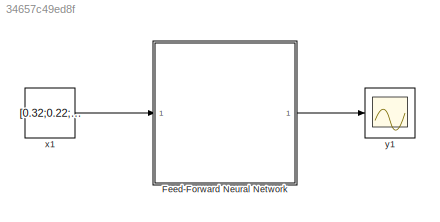
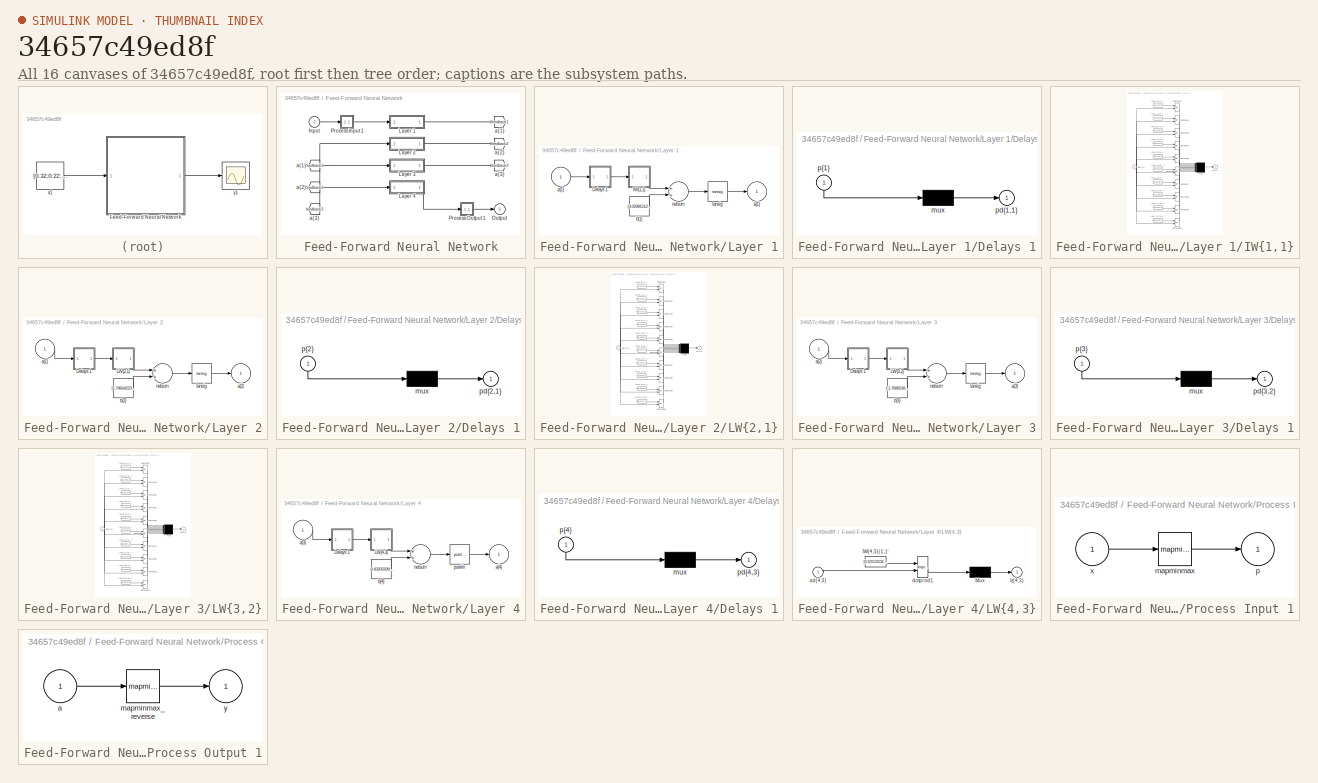
[diagram: thumbnail index - all 16 canvases of the model, root first then tree order]
MODEL slx_34657c49ed8f
KIND model
CONFIG AbsTol = auto
CONFIG EnableMultiTasking = off
CONFIG FixedStep = auto
CONFIG MaxStep = auto
CONFIG MinStep = auto
CONFIG RelTol = 1e-3
CONFIG SampleTimeConstraint = Unconstrained
CONFIG Solver = VariableStepAuto
CONFIG SolverName = VariableStepAuto
CONFIG StartTime = 0.0
CONFIG StopTime = 10.0
BLOCK [SubSystem] Feed-Forward Neural Network
  Ports = [1, 1]
  RequestExecContextInheritance = off
BLOCK [From] Feed-Forward Neural Network/ a{1} 
  GotoTag = feedback1
BLOCK [From] Feed-Forward Neural Network/ a{2} 
  GotoTag = feedback2
BLOCK [From] Feed-Forward Neural Network/ a{3} 
  GotoTag = feedback3
BLOCK [Inport] Feed-Forward Neural Network/Input
  IconDisplay = Port number
  PortDimensions = 3
BLOCK [SubSystem] Feed-Forward Neural Network/Layer 1
  Ports = [1, 1]
  RequestExecContextInheritance = off
BLOCK [SubSystem] Feed-Forward Neural Network/Layer 1/Delays 1
  Ports = [1, 1]
  RequestExecContextInheritance = off
BLOCK [Mux] Feed-Forward Neural Network/Layer 1/Delays 1/mux
  Inputs = 1
  Ports = [1, 1]
BLOCK [Outport] Feed-Forward Neural Network/Layer 1/Delays 1/pd{1,1}
  IconDisplay = Port number
BLOCK [Inport] Feed-Forward Neural Network/Layer 1/Delays 1/p{1}
  IconDisplay = Port number
  PortDimensions = 3
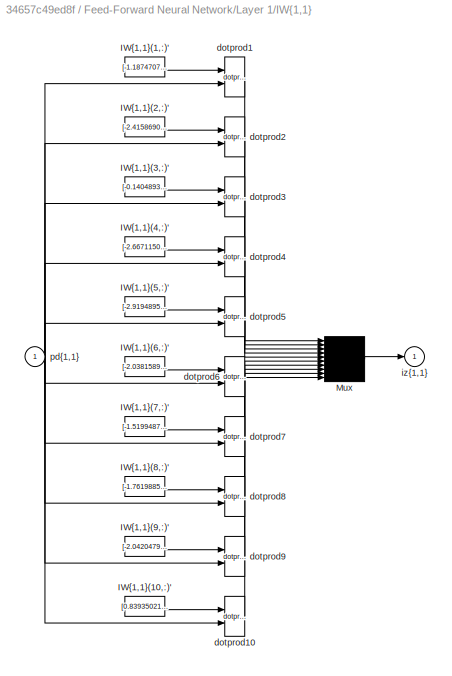
BLOCK [SubSystem] Feed-Forward Neural Network/Layer 1/IW{1,1}
  Ports = [1, 1]
  RequestExecContextInheritance = off
BLOCK [Constant] Feed-Forward Neural Network/Layer 1/IW{1,1}/IW{1,1}(1,:)'
  Value = [-1.1874707361875878053325550354202277958393096923828125;-1.89089737133453272832639413536526262760162353515625;-1.9895543531617090327046071251970715820789337158203125]
BLOCK [Constant] Feed-Forward Neural Network/Layer 1/IW{1,1}/IW{1,1}(10,:)'
  Value = [0.8393502176580829310381659524864517152309417724609375;2.18522999062611500420416632550768554210662841796875;-2.11103879129686067273041771841235458850860595703125]
BLOCK [Constant] Feed-Forward Neural Network/Layer 1/IW{1,1}/IW{1,1}(2,:)'
  Value = [-2.41586901124086761427633973653428256511688232421875;0.32617140747729411742739102919586002826690673828125;-1.56065848059455536400719211087562143802642822265625]
BLOCK [Constant] Feed-Forward Neural Network/Layer 1/IW{1,1}/IW{1,1}(3,:)'
  Value = [-0.1404893306141508924067551333791925571858882904052734375;2.87033758014271001002271077595651149749755859375;0.97435482240259663200276918360032141208648681640625]
BLOCK [Constant] Feed-Forward Neural Network/Layer 1/IW{1,1}/IW{1,1}(4,:)'
  Value = [-2.667115049922116565284113676170818507671356201171875;0.06901094992772864589181125438699382357299327850341796875;1.267962301509986122738382618990726768970489501953125]
BLOCK [Constant] Feed-Forward Neural Network/Layer 1/IW{1,1}/IW{1,1}(5,:)'
  Value = [-2.919489567655082939978683498338796198368072509765625;0.292197009989439815402789690779172815382480621337890625;-0.66620780622585318297979029011912643909454345703125]
BLOCK [Constant] Feed-Forward Neural Network/Layer 1/IW{1,1}/IW{1,1}(6,:)'
  Value = [-2.0381589758651319499449527938850224018096923828125;-0.3158141342633822290508760488592088222503662109375;-2.104778139815324689010367364971898496150970458984375]
BLOCK [Constant] Feed-Forward Neural Network/Layer 1/IW{1,1}/IW{1,1}(7,:)'
  Value = [-1.519948760394426390263333814800716936588287353515625;-1.61961933016207115798579252441413700580596923828125;2.0305199010230836620394256897270679473876953125]
BLOCK [Constant] Feed-Forward Neural Network/Layer 1/IW{1,1}/IW{1,1}(8,:)'
  Value = [-1.76198851851165816384536810801364481449127197265625;-0.017744385126355823045773973944960744120180606842041015625;-2.403045472565333628978123670094646513462066650390625]
BLOCK [Constant] Feed-Forward Neural Network/Layer 1/IW{1,1}/IW{1,1}(9,:)'
  Value = [-2.042047938417113517317602600087411701679229736328125;1.4523385411372575770627690872061066329479217529296875;-1.7659180802314049518741967403911985456943511962890625]
BLOCK [Mux] Feed-Forward Neural Network/Layer 1/IW{1,1}/Mux
  Inputs = 10
  Ports = [10, 1]
BLOCK [Reference] Feed-Forward Neural Network/Layer 1/IW{1,1}/dotprod1  REF=neural/Weight Functions/dotprod
  Ports = [2, 1]
  SourceBlock = neural/Weight Functions/dotprod
  SourceProductBaseCode = NN
  SourceProductName = Neural Network Toolbox
  SourceType = DOTPROD
BLOCK [Reference] Feed-Forward Neural Network/Layer 1/IW{1,1}/dotprod10  REF=neural/Weight Functions/dotprod
  Ports = [2, 1]
  SourceBlock = neural/Weight Functions/dotprod
  SourceProductBaseCode = NN
  SourceProductName = Neural Network Toolbox
  SourceType = DOTPROD
BLOCK [Reference] Feed-Forward Neural Network/Layer 1/IW{1,1}/dotprod2  REF=neural/Weight Functions/dotprod
  Ports = [2, 1]
  SourceBlock = neural/Weight Functions/dotprod
  SourceProductBaseCode = NN
  SourceProductName = Neural Network Toolbox
  SourceType = DOTPROD
BLOCK [Reference] Feed-Forward Neural Network/Layer 1/IW{1,1}/dotprod3  REF=neural/Weight Functions/dotprod
  Ports = [2, 1]
  SourceBlock = neural/Weight Functions/dotprod
  SourceProductBaseCode = NN
  SourceProductName = Neural Network Toolbox
  SourceType = DOTPROD
BLOCK [Reference] Feed-Forward Neural Network/Layer 1/IW{1,1}/dotprod4  REF=neural/Weight Functions/dotprod
  Ports = [2, 1]
  SourceBlock = neural/Weight Functions/dotprod
  SourceProductBaseCode = NN
  SourceProductName = Neural Network Toolbox
  SourceType = DOTPROD
BLOCK [Reference] Feed-Forward Neural Network/Layer 1/IW{1,1}/dotprod5  REF=neural/Weight Functions/dotprod
  Ports = [2, 1]
  SourceBlock = neural/Weight Functions/dotprod
  SourceProductBaseCode = NN
  SourceProductName = Neural Network Toolbox
  SourceType = DOTPROD
BLOCK [Reference] Feed-Forward Neural Network/Layer 1/IW{1,1}/dotprod6  REF=neural/Weight Functions/dotprod
  Ports = [2, 1]
  SourceBlock = neural/Weight Functions/dotprod
  SourceProductBaseCode = NN
  SourceProductName = Neural Network Toolbox
  SourceType = DOTPROD
BLOCK [Reference] Feed-Forward Neural Network/Layer 1/IW{1,1}/dotprod7  REF=neural/Weight Functions/dotprod
  Ports = [2, 1]
  SourceBlock = neural/Weight Functions/dotprod
  SourceProductBaseCode = NN
  SourceProductName = Neural Network Toolbox
  SourceType = DOTPROD
BLOCK [Reference] Feed-Forward Neural Network/Layer 1/IW{1,1}/dotprod8  REF=neural/Weight Functions/dotprod
  Ports = [2, 1]
  SourceBlock = neural/Weight Functions/dotprod
  SourceProductBaseCode = NN
  SourceProductName = Neural Network Toolbox
  SourceType = DOTPROD
BLOCK [Reference] Feed-Forward Neural Network/Layer 1/IW{1,1}/dotprod9  REF=neural/Weight Functions/dotprod
  Ports = [2, 1]
  SourceBlock = neural/Weight Functions/dotprod
  SourceProductBaseCode = NN
  SourceProductName = Neural Network Toolbox
  SourceType = DOTPROD
BLOCK [Outport] Feed-Forward Neural Network/Layer 1/IW{1,1}/iz{1,1}
  IconDisplay = Port number
BLOCK [Inport] Feed-Forward Neural Network/Layer 1/IW{1,1}/pd{1,1}
  IconDisplay = Port number
  PortDimensions = 3
BLOCK [Outport] Feed-Forward Neural Network/Layer 1/a{1}
  IconDisplay = Port number
  InitialOutput = [0;0;0;0;0;0;0;0;0;0]
BLOCK [Constant] Feed-Forward Neural Network/Layer 1/b{1}
  Value = [3.0298151241635320474188119987957179546356201171875;2.453261651684496502667798267793841660022735595703125;1.6601444919179872972136990938452072441577911376953125;1.0081934142086705907814803140354342758655548095703125;0.2815604593129836796805420817690901458263397216796875;-0.52749952453064452573272546942462213337421417236328125;-1.005023276547442723227732130908407270908355712890625;-1.7017856511019...<+145ch>
BLOCK [Sum] Feed-Forward Neural Network/Layer 1/netsum
  Inputs = 2
  Ports = [2, 1]
BLOCK [Inport] Feed-Forward Neural Network/Layer 1/p{1}
  IconDisplay = Port number
  PortDimensions = 3
BLOCK [Reference] Feed-Forward Neural Network/Layer 1/tansig  REF=neural/Transfer Functions/tansig
  Ports = [1, 1]
  SourceBlock = neural/Transfer Functions/tansig
  SourceProductBaseCode = NN
  SourceProductName = Neural Network Toolbox
  SourceType = TANSIG
BLOCK [SubSystem] Feed-Forward Neural Network/Layer 2
  Ports = [1, 1]
  RequestExecContextInheritance = off
BLOCK [SubSystem] Feed-Forward Neural Network/Layer 2/Delays 1
  Ports = [1, 1]
  RequestExecContextInheritance = off
BLOCK [Mux] Feed-Forward Neural Network/Layer 2/Delays 1/mux
  Inputs = 1
  Ports = [1, 1]
BLOCK [Outport] Feed-Forward Neural Network/Layer 2/Delays 1/pd{2,1}
  IconDisplay = Port number
BLOCK [Inport] Feed-Forward Neural Network/Layer 2/Delays 1/p{2}
  IconDisplay = Port number
  PortDimensions = 10
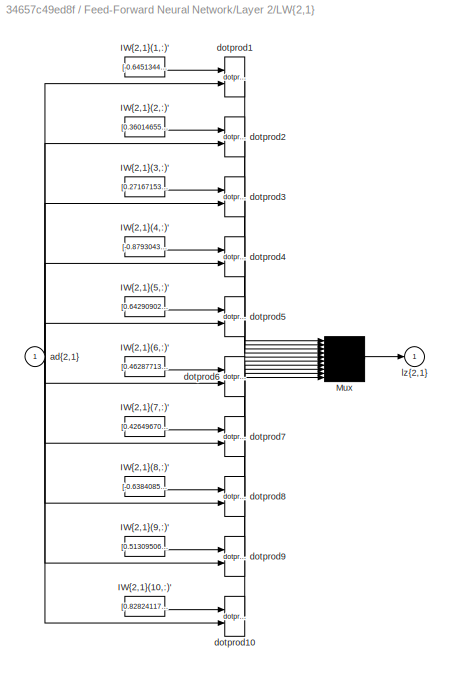
BLOCK [SubSystem] Feed-Forward Neural Network/Layer 2/LW{2,1}
  Ports = [1, 1]
  RequestExecContextInheritance = off
BLOCK [Constant] Feed-Forward Neural Network/Layer 2/LW{2,1}/IW{2,1}(1,:)'
  Value = [-0.64513440205722971665380782724241726100444793701171875;0.89997828434983928591606172631145454943180084228515625;-0.393619364648660929884016468349727801978588104248046875;-0.861583601851028557661038576043210923671722412109375;-0.411776327470188829860120449666283093392848968505859375;-0.3223917570621350758841572314850054681301116943359375;0.0787848293780692154886224898291402496397495269775390625;-...<+170ch>
BLOCK [Constant] Feed-Forward Neural Network/Layer 2/LW{2,1}/IW{2,1}(10,:)'
  Value = [0.82824117093505800202279942823224700987339019775390625;-0.37400259884171382918083281765575520694255828857421875;-0.07876310243182353676427709388008224777877330780029296875;0.96653711490576232900906461509293876588344573974609375;0.045051468934810635913468246371849090792238712310791015625;0.424829148816694590617970561652327887713909149169921875;-0.83340605553642066460895421187160536646842956542968...<+172ch>
BLOCK [Constant] Feed-Forward Neural Network/Layer 2/LW{2,1}/IW{2,1}(2,:)'
  Value = [0.360146559608427008214448505896143615245819091796875;0.82779858304053421935719825341948308050632476806640625;-0.3314160348846371118014531020889990031719207763671875;-0.5049435428360269373371238543768413364887237548828125;-0.02069753464205299764433476639169384725391864776611328125;-0.39004002032412454781251653912477195262908935546875;-0.6271078969969485772395501044229604303836822509765625;-0.8994...<+161ch>
BLOCK [Constant] Feed-Forward Neural Network/Layer 2/LW{2,1}/IW{2,1}(3,:)'
  Value = [0.2716715301440622010176184630836360156536102294921875;0.7791356486016340898714815921266563236713409423828125;0.1609892689978459079380712637430406175553798675537109375;0.5433171649977628359096115673310123383998870849609375;0.029876600714084315668639391105898539535701274871826171875;-0.68119107643328280499162019623327068984508514404296875;0.480790663142458274403878704106318764388561248779296875;0....<+168ch>
BLOCK [Constant] Feed-Forward Neural Network/Layer 2/LW{2,1}/IW{2,1}(4,:)'
  Value = [-0.87930436799550892867927132101613096892833709716796875;-0.039485441066613967409093532978658913634717464447021484375;0.255267158424291318308263498693122528493404388427734375;-0.365860416559253442958521418404416181147098541259765625;0.424685872187893498352906362924841232597827911376953125;0.7693853319325907325065827535581775009632110595703125;-0.456328015791298446934831645194208249449729919433593...<+170ch>
BLOCK [Constant] Feed-Forward Neural Network/Layer 2/LW{2,1}/IW{2,1}(5,:)'
  Value = [0.64290902575748598568594616153859533369541168212890625;-0.60549518920063538640619071884430013597011566162109375;-0.86595223140692823005082345844130031764507293701171875;0.65502276083030597231271485725301317870616912841796875;0.499051015271302966791466815266176126897335052490234375;0.284420035946963911666074409367865882813930511474609375;-0.49314137460779294830359731349744834005832672119140625;-0...<+172ch>
BLOCK [Constant] Feed-Forward Neural Network/Layer 2/LW{2,1}/IW{2,1}(6,:)'
  Value = [0.462877130618956911245476248950581066310405731201171875;-0.2245728245606085915486715975930565036833286285400390625;0.728148756827562859683666829369030892848968505859375;-0.7417138456466483287243818267597816884517669677734375;-0.8596005233476751161703077741549350321292877197265625;-0.1796434181578547006896684479215764440596103668212890625;-0.423062240659808963538779380542109720408916473388671875;...<+171ch>
BLOCK [Constant] Feed-Forward Neural Network/Layer 2/LW{2,1}/IW{2,1}(7,:)'
  Value = [0.426496704134075310665963343126350082457065582275390625;-0.67503169496579584762940839937073178589344024658203125;0.1473083628188757432386779555599787272512912750244140625;0.7518691757717779200476115875062532722949981689453125;-0.60028588022911522070756973334937356412410736083984375;0.71719203423739685820947897809674032032489776611328125;0.70170855524511488443550888405297882854938507080078125;-0....<+167ch>
BLOCK [Constant] Feed-Forward Neural Network/Layer 2/LW{2,1}/IW{2,1}(8,:)'
  Value = [-0.63840852013356386152054255944676697254180908203125;-0.67619468516183800499419476182083599269390106201171875;0.53273125863322190465254379887483082711696624755859375;-0.03526396136553520965772889894651598297059535980224609375;-0.2001672497940904238422632488436647690832614898681640625;-0.58642086272704252447596218189573846757411956787109375;-0.58429097634234683500409346379456110298633575439453125...<+165ch>
BLOCK [Constant] Feed-Forward Neural Network/Layer 2/LW{2,1}/IW{2,1}(9,:)'
  Value = [0.5130950617102822963744301887345500290393829345703125;0.6573605215376421284645402920432388782501220703125;-0.2324049189358489975187893605834688059985637664794921875;0.3116988106529714475101400239509530365467071533203125;-0.70109218060353750701096942066214978694915771484375;0.369500345007646224804176426914636977016925811767578125;-0.446079619210453248712155982502736151218414306640625;0.7646490085...<+157ch>
BLOCK [Mux] Feed-Forward Neural Network/Layer 2/LW{2,1}/Mux
  Inputs = 10
  Ports = [10, 1]
BLOCK [Inport] Feed-Forward Neural Network/Layer 2/LW{2,1}/ad{2,1}
  IconDisplay = Port number
  PortDimensions = 10
BLOCK [Reference] Feed-Forward Neural Network/Layer 2/LW{2,1}/dotprod1  REF=neural/Weight Functions/dotprod
  Ports = [2, 1]
  SourceBlock = neural/Weight Functions/dotprod
  SourceProductBaseCode = NN
  SourceProductName = Neural Network Toolbox
  SourceType = DOTPROD
BLOCK [Reference] Feed-Forward Neural Network/Layer 2/LW{2,1}/dotprod10  REF=neural/Weight Functions/dotprod
  Ports = [2, 1]
  SourceBlock = neural/Weight Functions/dotprod
  SourceProductBaseCode = NN
  SourceProductName = Neural Network Toolbox
  SourceType = DOTPROD
BLOCK [Reference] Feed-Forward Neural Network/Layer 2/LW{2,1}/dotprod2  REF=neural/Weight Functions/dotprod
  Ports = [2, 1]
  SourceBlock = neural/Weight Functions/dotprod
  SourceProductBaseCode = NN
  SourceProductName = Neural Network Toolbox
  SourceType = DOTPROD
BLOCK [Reference] Feed-Forward Neural Network/Layer 2/LW{2,1}/dotprod3  REF=neural/Weight Functions/dotprod
  Ports = [2, 1]
  SourceBlock = neural/Weight Functions/dotprod
  SourceProductBaseCode = NN
  SourceProductName = Neural Network Toolbox
  SourceType = DOTPROD
BLOCK [Reference] Feed-Forward Neural Network/Layer 2/LW{2,1}/dotprod4  REF=neural/Weight Functions/dotprod
  Ports = [2, 1]
  SourceBlock = neural/Weight Functions/dotprod
  SourceProductBaseCode = NN
  SourceProductName = Neural Network Toolbox
  SourceType = DOTPROD
BLOCK [Reference] Feed-Forward Neural Network/Layer 2/LW{2,1}/dotprod5  REF=neural/Weight Functions/dotprod
  Ports = [2, 1]
  SourceBlock = neural/Weight Functions/dotprod
  SourceProductBaseCode = NN
  SourceProductName = Neural Network Toolbox
  SourceType = DOTPROD
BLOCK [Reference] Feed-Forward Neural Network/Layer 2/LW{2,1}/dotprod6  REF=neural/Weight Functions/dotprod
  Ports = [2, 1]
  SourceBlock = neural/Weight Functions/dotprod
  SourceProductBaseCode = NN
  SourceProductName = Neural Network Toolbox
  SourceType = DOTPROD
BLOCK [Reference] Feed-Forward Neural Network/Layer 2/LW{2,1}/dotprod7  REF=neural/Weight Functions/dotprod
  Ports = [2, 1]
  SourceBlock = neural/Weight Functions/dotprod
  SourceProductBaseCode = NN
  SourceProductName = Neural Network Toolbox
  SourceType = DOTPROD
BLOCK [Reference] Feed-Forward Neural Network/Layer 2/LW{2,1}/dotprod8  REF=neural/Weight Functions/dotprod
  Ports = [2, 1]
  SourceBlock = neural/Weight Functions/dotprod
  SourceProductBaseCode = NN
  SourceProductName = Neural Network Toolbox
  SourceType = DOTPROD
BLOCK [Reference] Feed-Forward Neural Network/Layer 2/LW{2,1}/dotprod9  REF=neural/Weight Functions/dotprod
  Ports = [2, 1]
  SourceBlock = neural/Weight Functions/dotprod
  SourceProductBaseCode = NN
  SourceProductName = Neural Network Toolbox
  SourceType = DOTPROD
BLOCK [Outport] Feed-Forward Neural Network/Layer 2/LW{2,1}/lz{2,1}
  IconDisplay = Port number
BLOCK [Inport] Feed-Forward Neural Network/Layer 2/a{1} 
  IconDisplay = Port number
  PortDimensions = 10
BLOCK [Outport] Feed-Forward Neural Network/Layer 2/a{2}
  IconDisplay = Port number
  InitialOutput = [0;0;0;0;0;0;0;0;0;0]
BLOCK [Constant] Feed-Forward Neural Network/Layer 2/b{2}
  Value = [1.7466422333365958508011317462660372257232666015625;-1.245841041483890077046225997037254273891448974609375;-0.84602166895774766341986605766578577458858489990234375;0.51320920156005034318269508730736561119556427001953125;-0.265746160122068919573479206519550643861293792724609375;0.1887862628061256209388574234253610484302043914794921875;0.62838044624905087243149637288297526538372039794921875;-0.9625...<+159ch>
BLOCK [Sum] Feed-Forward Neural Network/Layer 2/netsum
  Inputs = 2
  Ports = [2, 1]
BLOCK [Reference] Feed-Forward Neural Network/Layer 2/tansig  REF=neural/Transfer Functions/tansig
  Ports = [1, 1]
  SourceBlock = neural/Transfer Functions/tansig
  SourceProductBaseCode = NN
  SourceProductName = Neural Network Toolbox
  SourceType = TANSIG
BLOCK [SubSystem] Feed-Forward Neural Network/Layer 3
  Ports = [1, 1]
  RequestExecContextInheritance = off
BLOCK [SubSystem] Feed-Forward Neural Network/Layer 3/Delays 1
  Ports = [1, 1]
  RequestExecContextInheritance = off
BLOCK [Mux] Feed-Forward Neural Network/Layer 3/Delays 1/mux
  Inputs = 1
  Ports = [1, 1]
BLOCK [Outport] Feed-Forward Neural Network/Layer 3/Delays 1/pd{3,2}
  IconDisplay = Port number
BLOCK [Inport] Feed-Forward Neural Network/Layer 3/Delays 1/p{3}
  IconDisplay = Port number
  PortDimensions = 10
BLOCK [SubSystem] Feed-Forward Neural Network/Layer 3/LW{3,2}
  Ports = [1, 1]
  RequestExecContextInheritance = off
BLOCK [Constant] Feed-Forward Neural Network/Layer 3/LW{3,2}/IW{3,2}(1,:)'
  Value = [0.17297101712737783518747392008663155138492584228515625;0.478025722941598452120359752370859496295452117919921875;0.403245851675728184115854446645244024693965911865234375;-0.66539393369935506683532366878353059291839599609375;0.63017645254385701303334599288064055144786834716796875;0.465121336368979620967678556553437374532222747802734375;-0.363851749702136129105412010176223702728748321533203125;0.80...<+165ch>
BLOCK [Constant] Feed-Forward Neural Network/Layer 3/LW{3,2}/IW{3,2}(10,:)'
  Value = [-0.78023557191233539054309176208334974944591522216796875;0.4761460635207281910652454826049506664276123046875;-0.6823292834328154032874635959160514175891876220703125;0.76798052215580747681400453075184486806392669677734375;-0.693161939288044148810286060324870049953460693359375;-0.627626419206150476526318016112782061100006103515625;0.1181635050366092176687971004866994917392730712890625;-0.3767551407...<+160ch>
BLOCK [Constant] Feed-Forward Neural Network/Layer 3/LW{3,2}/IW{3,2}(2,:)'
  Value = [0.053993081609670139087153728496559779159724712371826171875;-0.347860530824692426588029547929181717336177825927734375;-0.9976428845241078757766217677271924912929534912109375;0.311012259102058374882204816458397544920444488525390625;-0.95037076652526575326618285544100217521190643310546875;-0.63681687252203145188644839436165057122707366943359375;-0.603701473895023377203017389547312632203102111816406...<+174ch>
BLOCK [Constant] Feed-Forward Neural Network/Layer 3/LW{3,2}/IW{3,2}(3,:)'
  Value = [0.5520279462491097799414774272008799016475677490234375;0.1648188595326314509481591130679589696228504180908203125;-1.04652829460949892137477945652790367603302001953125;-0.47402449147789693650878461994579993188381195068359375;-0.277885579664090887064276103046722710132598876953125;-0.2201686272549187306513118755901814438402652740478515625;-0.0148521605725910627732178070914415002334862947463989257812...<+165ch>
BLOCK [Constant] Feed-Forward Neural Network/Layer 3/LW{3,2}/IW{3,2}(4,:)'
  Value = [0.461191059485868082301607273620902560651302337646484375;0.54161132101339826139252409120672382414340972900390625;-0.9231210633499602469242972802021540701389312744140625;0.3338185036025709262474947536247782409191131591796875;-0.304789913565141734608232582104392349720001220703125;0.09868186364481952577154544314907980151474475860595703125;-0.9148409326736413049729890190064907073974609375;0.590641823...<+154ch>
BLOCK [Constant] Feed-Forward Neural Network/Layer 3/LW{3,2}/IW{3,2}(5,:)'
  Value = [0.5358621503719811496324609834118746221065521240234375;-0.89157502449929493248959033735445700585842132568359375;0.6351119924327439658640059860772453248500823974609375;0.47178887457483165146499004549696110188961029052734375;0.41226330362267094020722879577078856527805328369140625;-0.5120710986545276011128180471132509410381317138671875;-0.310488497392649109851703315143822692334651947021484375;-0.123...<+161ch>
BLOCK [Constant] Feed-Forward Neural Network/Layer 3/LW{3,2}/IW{3,2}(6,:)'
  Value = [-0.400299581456519171229757603214238770306110382080078125;-0.6905620981717308648484277000534348189830780029296875;0.81990341779897402130217187732341699302196502685546875;0.13412505817003783636920388744329102337360382080078125;0.202530670147044011830672616270021535456180572509765625;0.233224627115440175106897413570550270378589630126953125;-0.71505424960624852648294336177059449255466461181640625;0....<+162ch>
BLOCK [Constant] Feed-Forward Neural Network/Layer 3/LW{3,2}/IW{3,2}(7,:)'
  Value = [0.383806433989951234497794985145446844398975372314453125;0.045518664553806827133275447749838349409401416778564453125;0.38302565829951940035158486352884210646152496337890625;0.49567557860381461498633370865718461573123931884765625;0.71373012188424789226104394401772879064083099365234375;0.0229740235719602496622382403757001156918704509735107421875;-0.73951743610994968847194286354351788759231567382812...<+173ch>
BLOCK [Constant] Feed-Forward Neural Network/Layer 3/LW{3,2}/IW{3,2}(8,:)'
  Value = [0.12231648047044048344123012839190778322517871856689453125;-0.10546690293607696720101785103906877338886260986328125;-0.73134552615097014882650228173588402569293975830078125;-0.50796732023131785371816704355296678841114044189453125;-0.19051910429759899567869751990656368434429168701171875;-0.55906816359749200717743633504142053425312042236328125;0.5331202300770805369012350638513453304767608642578125;...<+171ch>
BLOCK [Constant] Feed-Forward Neural Network/Layer 3/LW{3,2}/IW{3,2}(9,:)'
  Value = [-0.189036989924661169570896390723646618425846099853515625;0.95016371798828214156884541807812638580799102783203125;0.501473757210082471402756709721870720386505126953125;0.63135497163872245085514123275061137974262237548828125;-0.56201031605421281067691552379983477294445037841796875;0.65029748784733631961074706850922666490077972412109375;-0.398730903333880559724633485529921017587184906005859375;-0.8...<+174ch>
BLOCK [Mux] Feed-Forward Neural Network/Layer 3/LW{3,2}/Mux
  Inputs = 10
  Ports = [10, 1]
BLOCK [Inport] Feed-Forward Neural Network/Layer 3/LW{3,2}/ad{3,2}
  IconDisplay = Port number
  PortDimensions = 10
BLOCK [Reference] Feed-Forward Neural Network/Layer 3/LW{3,2}/dotprod1  REF=neural/Weight Functions/dotprod
  Ports = [2, 1]
  SourceBlock = neural/Weight Functions/dotprod
  SourceProductBaseCode = NN
  SourceProductName = Neural Network Toolbox
  SourceType = DOTPROD
BLOCK [Reference] Feed-Forward Neural Network/Layer 3/LW{3,2}/dotprod10  REF=neural/Weight Functions/dotprod
  Ports = [2, 1]
  SourceBlock = neural/Weight Functions/dotprod
  SourceProductBaseCode = NN
  SourceProductName = Neural Network Toolbox
  SourceType = DOTPROD
BLOCK [Reference] Feed-Forward Neural Network/Layer 3/LW{3,2}/dotprod2  REF=neural/Weight Functions/dotprod
  Ports = [2, 1]
  SourceBlock = neural/Weight Functions/dotprod
  SourceProductBaseCode = NN
  SourceProductName = Neural Network Toolbox
  SourceType = DOTPROD
BLOCK [Reference] Feed-Forward Neural Network/Layer 3/LW{3,2}/dotprod3  REF=neural/Weight Functions/dotprod
  Ports = [2, 1]
  SourceBlock = neural/Weight Functions/dotprod
  SourceProductBaseCode = NN
  SourceProductName = Neural Network Toolbox
  SourceType = DOTPROD
BLOCK [Reference] Feed-Forward Neural Network/Layer 3/LW{3,2}/dotprod4  REF=neural/Weight Functions/dotprod
  Ports = [2, 1]
  SourceBlock = neural/Weight Functions/dotprod
  SourceProductBaseCode = NN
  SourceProductName = Neural Network Toolbox
  SourceType = DOTPROD
BLOCK [Reference] Feed-Forward Neural Network/Layer 3/LW{3,2}/dotprod5  REF=neural/Weight Functions/dotprod
  Ports = [2, 1]
  SourceBlock = neural/Weight Functions/dotprod
  SourceProductBaseCode = NN
  SourceProductName = Neural Network Toolbox
  SourceType = DOTPROD
BLOCK [Reference] Feed-Forward Neural Network/Layer 3/LW{3,2}/dotprod6  REF=neural/Weight Functions/dotprod
  Ports = [2, 1]
  SourceBlock = neural/Weight Functions/dotprod
  SourceProductBaseCode = NN
  SourceProductName = Neural Network Toolbox
  SourceType = DOTPROD
BLOCK [Reference] Feed-Forward Neural Network/Layer 3/LW{3,2}/dotprod7  REF=neural/Weight Functions/dotprod
  Ports = [2, 1]
  SourceBlock = neural/Weight Functions/dotprod
  SourceProductBaseCode = NN
  SourceProductName = Neural Network Toolbox
  SourceType = DOTPROD
BLOCK [Reference] Feed-Forward Neural Network/Layer 3/LW{3,2}/dotprod8  REF=neural/Weight Functions/dotprod
  Ports = [2, 1]
  SourceBlock = neural/Weight Functions/dotprod
  SourceProductBaseCode = NN
  SourceProductName = Neural Network Toolbox
  SourceType = DOTPROD
BLOCK [Reference] Feed-Forward Neural Network/Layer 3/LW{3,2}/dotprod9  REF=neural/Weight Functions/dotprod
  Ports = [2, 1]
  SourceBlock = neural/Weight Functions/dotprod
  SourceProductBaseCode = NN
  SourceProductName = Neural Network Toolbox
  SourceType = DOTPROD
BLOCK [Outport] Feed-Forward Neural Network/Layer 3/LW{3,2}/lz{3,2}
  IconDisplay = Port number
BLOCK [Inport] Feed-Forward Neural Network/Layer 3/a{2} 
  IconDisplay = Port number
  PortDimensions = 10
BLOCK [Outport] Feed-Forward Neural Network/Layer 3/a{3}
  IconDisplay = Port number
  InitialOutput = [0;0;0;0;0;0;0;0;0;0]
BLOCK [Constant] Feed-Forward Neural Network/Layer 3/b{3}
  Value = [-1.7688318053510989624754756732727400958538055419921875;-1.37646216909242102843791144550777971744537353515625;-1.015897629489199260888199205510318279266357421875;-0.5988981696041066893343440824537537992000579833984375;-0.254057603132304798965179770675604231655597686767578125;-0.21267328295149090511273470838204957544803619384765625;0.5628044760960679848693644089507870376110076904296875;0.985023852...<+154ch>
BLOCK [Sum] Feed-Forward Neural Network/Layer 3/netsum
  Inputs = 2
  Ports = [2, 1]
BLOCK [Reference] Feed-Forward Neural Network/Layer 3/tansig  REF=neural/Transfer Functions/tansig
  Ports = [1, 1]
  SourceBlock = neural/Transfer Functions/tansig
  SourceProductBaseCode = NN
  SourceProductName = Neural Network Toolbox
  SourceType = TANSIG
BLOCK [SubSystem] Feed-Forward Neural Network/Layer 4
  Ports = [1, 1]
  RequestExecContextInheritance = off
BLOCK [SubSystem] Feed-Forward Neural Network/Layer 4/Delays 1
  Ports = [1, 1]
  RequestExecContextInheritance = off
BLOCK [Mux] Feed-Forward Neural Network/Layer 4/Delays 1/mux
  Inputs = 1
  Ports = [1, 1]
BLOCK [Outport] Feed-Forward Neural Network/Layer 4/Delays 1/pd{4,3}
  IconDisplay = Port number
BLOCK [Inport] Feed-Forward Neural Network/Layer 4/Delays 1/p{4}
  IconDisplay = Port number
  PortDimensions = 10
BLOCK [SubSystem] Feed-Forward Neural Network/Layer 4/LW{4,3}
  Ports = [1, 1]
  RequestExecContextInheritance = off
BLOCK [Constant] Feed-Forward Neural Network/Layer 4/LW{4,3}/IW{4,3}(1,:)'
  Value = [0.50553506329619946058073765016160905361175537109375;0.0948696855161368091113871514608035795390605926513671875;-0.7718944279241186645634797969250939786434173583984375;0.1003262319830757476335492128782789222896099090576171875;-0.78839627638930986908150089220725931227207183837890625;-0.6508990133213818918278548153466545045375823974609375;-0.92876201210975850575124468377907760441303253173828125;-0.5...<+165ch>
BLOCK [Mux] Feed-Forward Neural Network/Layer 4/LW{4,3}/Mux
  Inputs = 1
  Ports = [1, 1]
BLOCK [Inport] Feed-Forward Neural Network/Layer 4/LW{4,3}/ad{4,3}
  IconDisplay = Port number
  PortDimensions = 10
BLOCK [Reference] Feed-Forward Neural Network/Layer 4/LW{4,3}/dotprod1  REF=neural/Weight Functions/dotprod
  Ports = [2, 1]
  SourceBlock = neural/Weight Functions/dotprod
  SourceProductBaseCode = NN
  SourceProductName = Neural Network Toolbox
  SourceType = DOTPROD
BLOCK [Outport] Feed-Forward Neural Network/Layer 4/LW{4,3}/lz{4,3}
  IconDisplay = Port number
BLOCK [Inport] Feed-Forward Neural Network/Layer 4/a{3} 
  IconDisplay = Port number
  PortDimensions = 10
BLOCK [Outport] Feed-Forward Neural Network/Layer 4/a{4}
  IconDisplay = Port number
  InitialOutput = 0
BLOCK [Constant] Feed-Forward Neural Network/Layer 4/b{4}
  Value = -0.4320569915616498946064893971197307109832763671875
BLOCK [Sum] Feed-Forward Neural Network/Layer 4/netsum
  Inputs = 2
  Ports = [2, 1]
BLOCK [Reference] Feed-Forward Neural Network/Layer 4/purelin  REF=neural/Transfer Functions/purelin
  Ports = [1, 1]
  SourceBlock = neural/Transfer Functions/purelin
  SourceProductBaseCode = NN
  SourceProductName = Neural Network Toolbox
  SourceType = PURELIN
BLOCK [Outport] Feed-Forward Neural Network/Output
  IconDisplay = Port number
  InitialOutput = 0
BLOCK [SubSystem] Feed-Forward Neural Network/Process Input 1
  Ports = [1, 1]
  RequestExecContextInheritance = off
BLOCK [Reference] Feed-Forward Neural Network/Process Input 1/mapminmax  REF=neural/Processing Functions/mapminmax
  Ports = [1, 1]
  SourceBlock = neural/Processing Functions/mapminmax
  SourceProductBaseCode = NN
  SourceProductName = Neural Network Toolbox
  SourceType = MAPMINMAX Preprocess
BLOCK [Outport] Feed-Forward Neural Network/Process Input 1/p
  IconDisplay = Port number
  PortDimensions = 3
BLOCK [Inport] Feed-Forward Neural Network/Process Input 1/x
  IconDisplay = Port number
  PortDimensions = 3
BLOCK [SubSystem] Feed-Forward Neural Network/Process Output 1
  Ports = [1, 1]
  RequestExecContextInheritance = off
BLOCK [Inport] Feed-Forward Neural Network/Process Output 1/a
  IconDisplay = Port number
  PortDimensions = 1
BLOCK [Reference] Feed-Forward Neural Network/Process Output 1/mapminmax_reverse  REF=neural/Processing Functions/mapminmax_reverse
  Ports = [1, 1]
  SourceBlock = neural/Processing Functions/mapminmax_reverse
  SourceProductBaseCode = NN
  SourceProductName = Neural Network Toolbox
  SourceType = MAPMINMAX Reverse Process
BLOCK [Outport] Feed-Forward Neural Network/Process Output 1/y
  IconDisplay = Port number
  PortDimensions = 1
BLOCK [Goto] Feed-Forward Neural Network/a{1}
  GotoTag = feedback1
BLOCK [Goto] Feed-Forward Neural Network/a{2}
  GotoTag = feedback2
BLOCK [Goto] Feed-Forward Neural Network/a{3}
  GotoTag = feedback3
BLOCK [Constant] x1
  SampleTime = 1
  Value = [0.32;0.22;0.25]
BLOCK [Scope] y1
  Floating = off
  NumInputPorts = 1
  Ports = [1]
LINE Feed-Forward Neural Network/ a{1} :1 -> Feed-Forward Neural Network/Layer 2:1
LINE Feed-Forward Neural Network/ a{2} :1 -> Feed-Forward Neural Network/Layer 3:1
LINE Feed-Forward Neural Network/ a{3} :1 -> Feed-Forward Neural Network/Layer 4:1
LINE Feed-Forward Neural Network/Input:1 -> Feed-Forward Neural Network/Process Input 1:1
LINE Feed-Forward Neural Network/Layer 1/Delays 1/mux:1 -> Feed-Forward Neural Network/Layer 1/Delays 1/pd{1,1}:1
LINE Feed-Forward Neural Network/Layer 1/Delays 1/p{1}:1 -> Feed-Forward Neural Network/Layer 1/Delays 1/mux:1
LINE Feed-Forward Neural Network/Layer 1/Delays 1:1 -> Feed-Forward Neural Network/Layer 1/IW{1,1}:1
LINE Feed-Forward Neural Network/Layer 1/IW{1,1}/IW{1,1}(1,:)':1 -> Feed-Forward Neural Network/Layer 1/IW{1,1}/dotprod1:1
LINE Feed-Forward Neural Network/Layer 1/IW{1,1}/IW{1,1}(10,:)':1 -> Feed-Forward Neural Network/Layer 1/IW{1,1}/dotprod10:1
LINE Feed-Forward Neural Network/Layer 1/IW{1,1}/IW{1,1}(2,:)':1 -> Feed-Forward Neural Network/Layer 1/IW{1,1}/dotprod2:1
LINE Feed-Forward Neural Network/Layer 1/IW{1,1}/IW{1,1}(3,:)':1 -> Feed-Forward Neural Network/Layer 1/IW{1,1}/dotprod3:1
LINE Feed-Forward Neural Network/Layer 1/IW{1,1}/IW{1,1}(4,:)':1 -> Feed-Forward Neural Network/Layer 1/IW{1,1}/dotprod4:1
LINE Feed-Forward Neural Network/Layer 1/IW{1,1}/IW{1,1}(5,:)':1 -> Feed-Forward Neural Network/Layer 1/IW{1,1}/dotprod5:1
LINE Feed-Forward Neural Network/Layer 1/IW{1,1}/IW{1,1}(6,:)':1 -> Feed-Forward Neural Network/Layer 1/IW{1,1}/dotprod6:1
LINE Feed-Forward Neural Network/Layer 1/IW{1,1}/IW{1,1}(7,:)':1 -> Feed-Forward Neural Network/Layer 1/IW{1,1}/dotprod7:1
LINE Feed-Forward Neural Network/Layer 1/IW{1,1}/IW{1,1}(8,:)':1 -> Feed-Forward Neural Network/Layer 1/IW{1,1}/dotprod8:1
LINE Feed-Forward Neural Network/Layer 1/IW{1,1}/IW{1,1}(9,:)':1 -> Feed-Forward Neural Network/Layer 1/IW{1,1}/dotprod9:1
LINE Feed-Forward Neural Network/Layer 1/IW{1,1}/Mux:1 -> Feed-Forward Neural Network/Layer 1/IW{1,1}/iz{1,1}:1
LINE Feed-Forward Neural Network/Layer 1/IW{1,1}/dotprod10:1 -> Feed-Forward Neural Network/Layer 1/IW{1,1}/Mux:10
LINE Feed-Forward Neural Network/Layer 1/IW{1,1}/dotprod1:1 -> Feed-Forward Neural Network/Layer 1/IW{1,1}/Mux:1
LINE Feed-Forward Neural Network/Layer 1/IW{1,1}/dotprod2:1 -> Feed-Forward Neural Network/Layer 1/IW{1,1}/Mux:2
LINE Feed-Forward Neural Network/Layer 1/IW{1,1}/dotprod3:1 -> Feed-Forward Neural Network/Layer 1/IW{1,1}/Mux:3
LINE Feed-Forward Neural Network/Layer 1/IW{1,1}/dotprod4:1 -> Feed-Forward Neural Network/Layer 1/IW{1,1}/Mux:4
LINE Feed-Forward Neural Network/Layer 1/IW{1,1}/dotprod5:1 -> Feed-Forward Neural Network/Layer 1/IW{1,1}/Mux:5
LINE Feed-Forward Neural Network/Layer 1/IW{1,1}/dotprod6:1 -> Feed-Forward Neural Network/Layer 1/IW{1,1}/Mux:6
LINE Feed-Forward Neural Network/Layer 1/IW{1,1}/dotprod7:1 -> Feed-Forward Neural Network/Layer 1/IW{1,1}/Mux:7
LINE Feed-Forward Neural Network/Layer 1/IW{1,1}/dotprod8:1 -> Feed-Forward Neural Network/Layer 1/IW{1,1}/Mux:8
LINE Feed-Forward Neural Network/Layer 1/IW{1,1}/dotprod9:1 -> Feed-Forward Neural Network/Layer 1/IW{1,1}/Mux:9
NET Feed-Forward Neural Network/Layer 1/IW{1,1}/pd{1,1}:1 -> Feed-Forward Neural Network/Layer 1/IW{1,1}/dotprod10:2, Feed-Forward Neural Network/Layer 1/IW{1,1}/dotprod1:2, Feed-Forward Neural Network/Layer 1/IW{1,1}/dotprod2:2, Feed-Forward Neural Network/Layer 1/IW{1,1}/dotprod3:2, Feed-Forward Neural Network/Layer 1/IW{1,1}/dotprod4:2, Feed-Forward Neural Network/Layer 1/IW{1,1}/dotprod5:2, Feed-Forward Neural Network/Layer 1/IW{1,1}/dotprod6:2, Feed-Forward Neural Network/Layer 1/IW{1,1}/dotprod7:2, Feed-Forward Neural Network/Layer 1/IW{1,1}/dotprod8:2, Feed-Forward Neural Network/Layer 1/IW{1,1}/dotprod9:2
LINE Feed-Forward Neural Network/Layer 1/IW{1,1}:1 -> Feed-Forward Neural Network/Layer 1/netsum:1
LINE Feed-Forward Neural Network/Layer 1/b{1}:1 -> Feed-Forward Neural Network/Layer 1/netsum:2
LINE Feed-Forward Neural Network/Layer 1/netsum:1 -> Feed-Forward Neural Network/Layer 1/tansig:1
LINE Feed-Forward Neural Network/Layer 1/p{1}:1 -> Feed-Forward Neural Network/Layer 1/Delays 1:1
LINE Feed-Forward Neural Network/Layer 1/tansig:1 -> Feed-Forward Neural Network/Layer 1/a{1}:1
LINE Feed-Forward Neural Network/Layer 1:1 -> Feed-Forward Neural Network/a{1}:1
LINE Feed-Forward Neural Network/Layer 2/Delays 1/mux:1 -> Feed-Forward Neural Network/Layer 2/Delays 1/pd{2,1}:1
LINE Feed-Forward Neural Network/Layer 2/Delays 1/p{2}:1 -> Feed-Forward Neural Network/Layer 2/Delays 1/mux:1
LINE Feed-Forward Neural Network/Layer 2/Delays 1:1 -> Feed-Forward Neural Network/Layer 2/LW{2,1}:1
LINE Feed-Forward Neural Network/Layer 2/LW{2,1}/IW{2,1}(1,:)':1 -> Feed-Forward Neural Network/Layer 2/LW{2,1}/dotprod1:1
LINE Feed-Forward Neural Network/Layer 2/LW{2,1}/IW{2,1}(10,:)':1 -> Feed-Forward Neural Network/Layer 2/LW{2,1}/dotprod10:1
LINE Feed-Forward Neural Network/Layer 2/LW{2,1}/IW{2,1}(2,:)':1 -> Feed-Forward Neural Network/Layer 2/LW{2,1}/dotprod2:1
LINE Feed-Forward Neural Network/Layer 2/LW{2,1}/IW{2,1}(3,:)':1 -> Feed-Forward Neural Network/Layer 2/LW{2,1}/dotprod3:1
LINE Feed-Forward Neural Network/Layer 2/LW{2,1}/IW{2,1}(4,:)':1 -> Feed-Forward Neural Network/Layer 2/LW{2,1}/dotprod4:1
LINE Feed-Forward Neural Network/Layer 2/LW{2,1}/IW{2,1}(5,:)':1 -> Feed-Forward Neural Network/Layer 2/LW{2,1}/dotprod5:1
LINE Feed-Forward Neural Network/Layer 2/LW{2,1}/IW{2,1}(6,:)':1 -> Feed-Forward Neural Network/Layer 2/LW{2,1}/dotprod6:1
LINE Feed-Forward Neural Network/Layer 2/LW{2,1}/IW{2,1}(7,:)':1 -> Feed-Forward Neural Network/Layer 2/LW{2,1}/dotprod7:1
LINE Feed-Forward Neural Network/Layer 2/LW{2,1}/IW{2,1}(8,:)':1 -> Feed-Forward Neural Network/Layer 2/LW{2,1}/dotprod8:1
LINE Feed-Forward Neural Network/Layer 2/LW{2,1}/IW{2,1}(9,:)':1 -> Feed-Forward Neural Network/Layer 2/LW{2,1}/dotprod9:1
LINE Feed-Forward Neural Network/Layer 2/LW{2,1}/Mux:1 -> Feed-Forward Neural Network/Layer 2/LW{2,1}/lz{2,1}:1
NET Feed-Forward Neural Network/Layer 2/LW{2,1}/ad{2,1}:1 -> Feed-Forward Neural Network/Layer 2/LW{2,1}/dotprod10:2, Feed-Forward Neural Network/Layer 2/LW{2,1}/dotprod1:2, Feed-Forward Neural Network/Layer 2/LW{2,1}/dotprod2:2, Feed-Forward Neural Network/Layer 2/LW{2,1}/dotprod3:2, Feed-Forward Neural Network/Layer 2/LW{2,1}/dotprod4:2, Feed-Forward Neural Network/Layer 2/LW{2,1}/dotprod5:2, Feed-Forward Neural Network/Layer 2/LW{2,1}/dotprod6:2, Feed-Forward Neural Network/Layer 2/LW{2,1}/dotprod7:2, Feed-Forward Neural Network/Layer 2/LW{2,1}/dotprod8:2, Feed-Forward Neural Network/Layer 2/LW{2,1}/dotprod9:2
LINE Feed-Forward Neural Network/Layer 2/LW{2,1}/dotprod10:1 -> Feed-Forward Neural Network/Layer 2/LW{2,1}/Mux:10
LINE Feed-Forward Neural Network/Layer 2/LW{2,1}/dotprod1:1 -> Feed-Forward Neural Network/Layer 2/LW{2,1}/Mux:1
LINE Feed-Forward Neural Network/Layer 2/LW{2,1}/dotprod2:1 -> Feed-Forward Neural Network/Layer 2/LW{2,1}/Mux:2
LINE Feed-Forward Neural Network/Layer 2/LW{2,1}/dotprod3:1 -> Feed-Forward Neural Network/Layer 2/LW{2,1}/Mux:3
LINE Feed-Forward Neural Network/Layer 2/LW{2,1}/dotprod4:1 -> Feed-Forward Neural Network/Layer 2/LW{2,1}/Mux:4
LINE Feed-Forward Neural Network/Layer 2/LW{2,1}/dotprod5:1 -> Feed-Forward Neural Network/Layer 2/LW{2,1}/Mux:5
LINE Feed-Forward Neural Network/Layer 2/LW{2,1}/dotprod6:1 -> Feed-Forward Neural Network/Layer 2/LW{2,1}/Mux:6
LINE Feed-Forward Neural Network/Layer 2/LW{2,1}/dotprod7:1 -> Feed-Forward Neural Network/Layer 2/LW{2,1}/Mux:7
LINE Feed-Forward Neural Network/Layer 2/LW{2,1}/dotprod8:1 -> Feed-Forward Neural Network/Layer 2/LW{2,1}/Mux:8
LINE Feed-Forward Neural Network/Layer 2/LW{2,1}/dotprod9:1 -> Feed-Forward Neural Network/Layer 2/LW{2,1}/Mux:9
LINE Feed-Forward Neural Network/Layer 2/LW{2,1}:1 -> Feed-Forward Neural Network/Layer 2/netsum:1
LINE Feed-Forward Neural Network/Layer 2/a{1} :1 -> Feed-Forward Neural Network/Layer 2/Delays 1:1
LINE Feed-Forward Neural Network/Layer 2/b{2}:1 -> Feed-Forward Neural Network/Layer 2/netsum:2
LINE Feed-Forward Neural Network/Layer 2/netsum:1 -> Feed-Forward Neural Network/Layer 2/tansig:1
LINE Feed-Forward Neural Network/Layer 2/tansig:1 -> Feed-Forward Neural Network/Layer 2/a{2}:1
LINE Feed-Forward Neural Network/Layer 2:1 -> Feed-Forward Neural Network/a{2}:1
LINE Feed-Forward Neural Network/Layer 3/Delays 1/mux:1 -> Feed-Forward Neural Network/Layer 3/Delays 1/pd{3,2}:1
LINE Feed-Forward Neural Network/Layer 3/Delays 1/p{3}:1 -> Feed-Forward Neural Network/Layer 3/Delays 1/mux:1
LINE Feed-Forward Neural Network/Layer 3/Delays 1:1 -> Feed-Forward Neural Network/Layer 3/LW{3,2}:1
LINE Feed-Forward Neural Network/Layer 3/LW{3,2}/IW{3,2}(1,:)':1 -> Feed-Forward Neural Network/Layer 3/LW{3,2}/dotprod1:1
LINE Feed-Forward Neural Network/Layer 3/LW{3,2}/IW{3,2}(10,:)':1 -> Feed-Forward Neural Network/Layer 3/LW{3,2}/dotprod10:1
LINE Feed-Forward Neural Network/Layer 3/LW{3,2}/IW{3,2}(2,:)':1 -> Feed-Forward Neural Network/Layer 3/LW{3,2}/dotprod2:1
LINE Feed-Forward Neural Network/Layer 3/LW{3,2}/IW{3,2}(3,:)':1 -> Feed-Forward Neural Network/Layer 3/LW{3,2}/dotprod3:1
LINE Feed-Forward Neural Network/Layer 3/LW{3,2}/IW{3,2}(4,:)':1 -> Feed-Forward Neural Network/Layer 3/LW{3,2}/dotprod4:1
LINE Feed-Forward Neural Network/Layer 3/LW{3,2}/IW{3,2}(5,:)':1 -> Feed-Forward Neural Network/Layer 3/LW{3,2}/dotprod5:1
LINE Feed-Forward Neural Network/Layer 3/LW{3,2}/IW{3,2}(6,:)':1 -> Feed-Forward Neural Network/Layer 3/LW{3,2}/dotprod6:1
LINE Feed-Forward Neural Network/Layer 3/LW{3,2}/IW{3,2}(7,:)':1 -> Feed-Forward Neural Network/Layer 3/LW{3,2}/dotprod7:1
LINE Feed-Forward Neural Network/Layer 3/LW{3,2}/IW{3,2}(8,:)':1 -> Feed-Forward Neural Network/Layer 3/LW{3,2}/dotprod8:1
LINE Feed-Forward Neural Network/Layer 3/LW{3,2}/IW{3,2}(9,:)':1 -> Feed-Forward Neural Network/Layer 3/LW{3,2}/dotprod9:1
LINE Feed-Forward Neural Network/Layer 3/LW{3,2}/Mux:1 -> Feed-Forward Neural Network/Layer 3/LW{3,2}/lz{3,2}:1
NET Feed-Forward Neural Network/Layer 3/LW{3,2}/ad{3,2}:1 -> Feed-Forward Neural Network/Layer 3/LW{3,2}/dotprod10:2, Feed-Forward Neural Network/Layer 3/LW{3,2}/dotprod1:2, Feed-Forward Neural Network/Layer 3/LW{3,2}/dotprod2:2, Feed-Forward Neural Network/Layer 3/LW{3,2}/dotprod3:2, Feed-Forward Neural Network/Layer 3/LW{3,2}/dotprod4:2, Feed-Forward Neural Network/Layer 3/LW{3,2}/dotprod5:2, Feed-Forward Neural Network/Layer 3/LW{3,2}/dotprod6:2, Feed-Forward Neural Network/Layer 3/LW{3,2}/dotprod7:2, Feed-Forward Neural Network/Layer 3/LW{3,2}/dotprod8:2, Feed-Forward Neural Network/Layer 3/LW{3,2}/dotprod9:2
LINE Feed-Forward Neural Network/Layer 3/LW{3,2}/dotprod10:1 -> Feed-Forward Neural Network/Layer 3/LW{3,2}/Mux:10
LINE Feed-Forward Neural Network/Layer 3/LW{3,2}/dotprod1:1 -> Feed-Forward Neural Network/Layer 3/LW{3,2}/Mux:1
LINE Feed-Forward Neural Network/Layer 3/LW{3,2}/dotprod2:1 -> Feed-Forward Neural Network/Layer 3/LW{3,2}/Mux:2
LINE Feed-Forward Neural Network/Layer 3/LW{3,2}/dotprod3:1 -> Feed-Forward Neural Network/Layer 3/LW{3,2}/Mux:3
LINE Feed-Forward Neural Network/Layer 3/LW{3,2}/dotprod4:1 -> Feed-Forward Neural Network/Layer 3/LW{3,2}/Mux:4
LINE Feed-Forward Neural Network/Layer 3/LW{3,2}/dotprod5:1 -> Feed-Forward Neural Network/Layer 3/LW{3,2}/Mux:5
LINE Feed-Forward Neural Network/Layer 3/LW{3,2}/dotprod6:1 -> Feed-Forward Neural Network/Layer 3/LW{3,2}/Mux:6
LINE Feed-Forward Neural Network/Layer 3/LW{3,2}/dotprod7:1 -> Feed-Forward Neural Network/Layer 3/LW{3,2}/Mux:7
LINE Feed-Forward Neural Network/Layer 3/LW{3,2}/dotprod8:1 -> Feed-Forward Neural Network/Layer 3/LW{3,2}/Mux:8
LINE Feed-Forward Neural Network/Layer 3/LW{3,2}/dotprod9:1 -> Feed-Forward Neural Network/Layer 3/LW{3,2}/Mux:9
LINE Feed-Forward Neural Network/Layer 3/LW{3,2}:1 -> Feed-Forward Neural Network/Layer 3/netsum:1
LINE Feed-Forward Neural Network/Layer 3/a{2} :1 -> Feed-Forward Neural Network/Layer 3/Delays 1:1
LINE Feed-Forward Neural Network/Layer 3/b{3}:1 -> Feed-Forward Neural Network/Layer 3/netsum:2
LINE Feed-Forward Neural Network/Layer 3/netsum:1 -> Feed-Forward Neural Network/Layer 3/tansig:1
LINE Feed-Forward Neural Network/Layer 3/tansig:1 -> Feed-Forward Neural Network/Layer 3/a{3}:1
LINE Feed-Forward Neural Network/Layer 3:1 -> Feed-Forward Neural Network/a{3}:1
LINE Feed-Forward Neural Network/Layer 4/Delays 1/mux:1 -> Feed-Forward Neural Network/Layer 4/Delays 1/pd{4,3}:1
LINE Feed-Forward Neural Network/Layer 4/Delays 1/p{4}:1 -> Feed-Forward Neural Network/Layer 4/Delays 1/mux:1
LINE Feed-Forward Neural Network/Layer 4/Delays 1:1 -> Feed-Forward Neural Network/Layer 4/LW{4,3}:1
LINE Feed-Forward Neural Network/Layer 4/LW{4,3}/IW{4,3}(1,:)':1 -> Feed-Forward Neural Network/Layer 4/LW{4,3}/dotprod1:1
LINE Feed-Forward Neural Network/Layer 4/LW{4,3}/Mux:1 -> Feed-Forward Neural Network/Layer 4/LW{4,3}/lz{4,3}:1
LINE Feed-Forward Neural Network/Layer 4/LW{4,3}/ad{4,3}:1 -> Feed-Forward Neural Network/Layer 4/LW{4,3}/dotprod1:2
LINE Feed-Forward Neural Network/Layer 4/LW{4,3}/dotprod1:1 -> Feed-Forward Neural Network/Layer 4/LW{4,3}/Mux:1
LINE Feed-Forward Neural Network/Layer 4/LW{4,3}:1 -> Feed-Forward Neural Network/Layer 4/netsum:1
LINE Feed-Forward Neural Network/Layer 4/a{3} :1 -> Feed-Forward Neural Network/Layer 4/Delays 1:1
LINE Feed-Forward Neural Network/Layer 4/b{4}:1 -> Feed-Forward Neural Network/Layer 4/netsum:2
LINE Feed-Forward Neural Network/Layer 4/netsum:1 -> Feed-Forward Neural Network/Layer 4/purelin:1
LINE Feed-Forward Neural Network/Layer 4/purelin:1 -> Feed-Forward Neural Network/Layer 4/a{4}:1
LINE Feed-Forward Neural Network/Layer 4:1 -> Feed-Forward Neural Network/Process Output 1:1
LINE Feed-Forward Neural Network/Process Input 1/mapminmax:1 -> Feed-Forward Neural Network/Process Input 1/p:1
LINE Feed-Forward Neural Network/Process Input 1/x:1 -> Feed-Forward Neural Network/Process Input 1/mapminmax:1
LINE Feed-Forward Neural Network/Process Input 1:1 -> Feed-Forward Neural Network/Layer 1:1
LINE Feed-Forward Neural Network/Process Output 1/a:1 -> Feed-Forward Neural Network/Process Output 1/mapminmax_reverse:1
LINE Feed-Forward Neural Network/Process Output 1/mapminmax_reverse:1 -> Feed-Forward Neural Network/Process Output 1/y:1
LINE Feed-Forward Neural Network/Process Output 1:1 -> Feed-Forward Neural Network/Output:1
LINE Feed-Forward Neural Network:1 -> y1:1
LINE x1:1 -> Feed-Forward Neural Network:1
note: NET lines group one-source signal fan-out (src -> all destinations, sorted); 1:1 wires keep LINE
